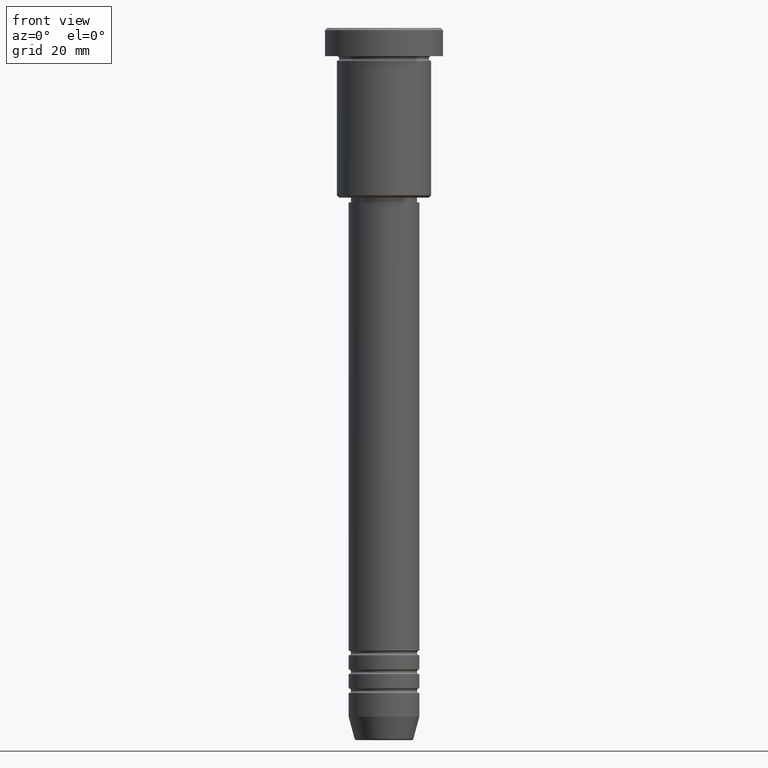
[diagram: clean part render]
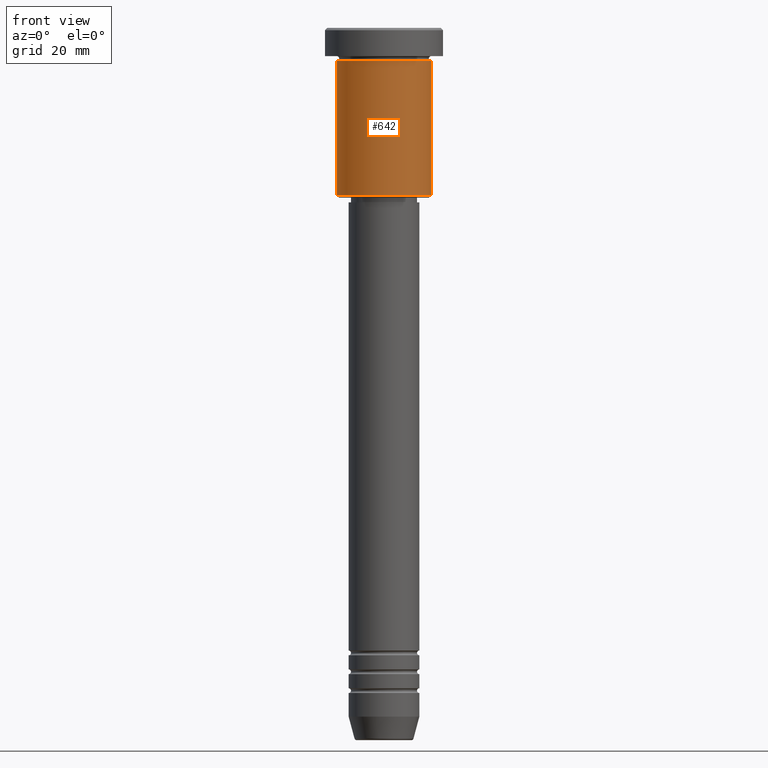
[diagram: same view with one face highlighted and labeled with its STEP entity id]
A machine part, front view. The second image highlights one B-rep face of the part: STEP entity #642.
In plain terms, the highlighted cylindrical surface (partial cylindrical patch) has radius 10 mm, axis along (-0, -0, 1).
Its self-contained STEP definition (entity closure, byte-faithful):
#19 = EDGE_CURVE ( 'NONE', #722, #63, #69, .T. ) ;
#21 = CARTESIAN_POINT ( 'NONE',  ( -10.00000000000000000, 1.224646799147353256E-15, 0.000000000000000000 ) ) ;
#26 = FACE_OUTER_BOUND ( 'NONE', #882, .T. ) ;
#37 = DIRECTION ( 'NONE',  ( -0.000000000000000000, -0.000000000000000000, 1.000000000000000000 ) ) ;
#63 = VERTEX_POINT ( 'NONE', #265 ) ;
#69 = LINE ( 'NONE', #798, #264 ) ;
#114 = CARTESIAN_POINT ( 'NONE',  ( -10.00000000000000000, 1.224646799147353256E-15, -35.49999999999999289 ) ) ;
#151 = VERTEX_POINT ( 'NONE', #114 ) ;
#188 = DIRECTION ( 'NONE',  ( -0.000000000000000000, -0.000000000000000000, 1.000000000000000000 ) ) ;
#203 = ORIENTED_EDGE ( 'NONE', *, *, #627, .F. ) ;
#214 = AXIS2_PLACEMENT_3D ( 'NONE', #876, #37, #764 ) ;
#257 = DIRECTION ( 'NONE',  ( -0.000000000000000000, -0.000000000000000000, 1.000000000000000000 ) ) ;
#264 = VECTOR ( 'NONE', #257, 1000.000000000000000 ) ;
#265 = CARTESIAN_POINT ( 'NONE',  ( 10.00000000000000000, 0.000000000000000000, -6.999999999999996447 ) ) ;
#286 = AXIS2_PLACEMENT_3D ( 'NONE', #1030, #447, #724 ) ;
#326 = VECTOR ( 'NONE', #732, 1000.000000000000000 ) ;
#365 = LINE ( 'NONE', #21, #326 ) ;
#424 = ORIENTED_EDGE ( 'NONE', *, *, #19, .T. ) ;
#447 = DIRECTION ( 'NONE',  ( -0.000000000000000000, -0.000000000000000000, 1.000000000000000000 ) ) ;
#526 = ORIENTED_EDGE ( 'NONE', *, *, #1124, .T. ) ;
#549 = CARTESIAN_POINT ( 'NONE',  ( 0.000000000000000000, 0.000000000000000000, 0.000000000000000000 ) ) ;
#574 = CARTESIAN_POINT ( 'NONE',  ( -10.00000000000000000, 1.224646799147353256E-15, -6.999999999999996447 ) ) ;
#601 = EDGE_CURVE ( 'NONE', #1154, #63, #791, .T. ) ;
#627 = EDGE_CURVE ( 'NONE', #151, #1154, #365, .T. ) ;
#642 = ADVANCED_FACE ( 'NONE', ( #26 ), #1012, .T. ) ;
#711 = AXIS2_PLACEMENT_3D ( 'NONE', #549, #188, #930 ) ;
#722 = VERTEX_POINT ( 'NONE', #856 ) ;
#724 = DIRECTION ( 'NONE',  ( 1.000000000000000000, 0.000000000000000000, 0.000000000000000000 ) ) ;
#732 = DIRECTION ( 'NONE',  ( -0.000000000000000000, -0.000000000000000000, 1.000000000000000000 ) ) ;
#764 = DIRECTION ( 'NONE',  ( -1.000000000000000000, 0.000000000000000000, 0.000000000000000000 ) ) ;
#791 = CIRCLE ( 'NONE', #286, 10.00000000000000000 ) ;
#798 = CARTESIAN_POINT ( 'NONE',  ( 10.00000000000000000, 0.000000000000000000, 0.000000000000000000 ) ) ;
#856 = CARTESIAN_POINT ( 'NONE',  ( 10.00000000000000000, 0.000000000000000000, -35.49999999999999289 ) ) ;
#876 = CARTESIAN_POINT ( 'NONE',  ( 0.000000000000000000, 0.000000000000000000, -35.49999999999999289 ) ) ;
#882 = EDGE_LOOP ( 'NONE', ( #203, #526, #424, #1033 ) ) ;
#891 = CIRCLE ( 'NONE', #214, 10.00000000000000000 ) ;
#930 = DIRECTION ( 'NONE',  ( 1.000000000000000000, 0.000000000000000000, 0.000000000000000000 ) ) ;
#1012 = CYLINDRICAL_SURFACE ( 'NONE', #711, 10.00000000000000000 ) ;
#1030 = CARTESIAN_POINT ( 'NONE',  ( 0.000000000000000000, 0.000000000000000000, -6.999999999999996447 ) ) ;
#1033 = ORIENTED_EDGE ( 'NONE', *, *, #601, .F. ) ;
#1124 = EDGE_CURVE ( 'NONE', #151, #722, #891, .T. ) ;
#1154 = VERTEX_POINT ( 'NONE', #574 ) ;